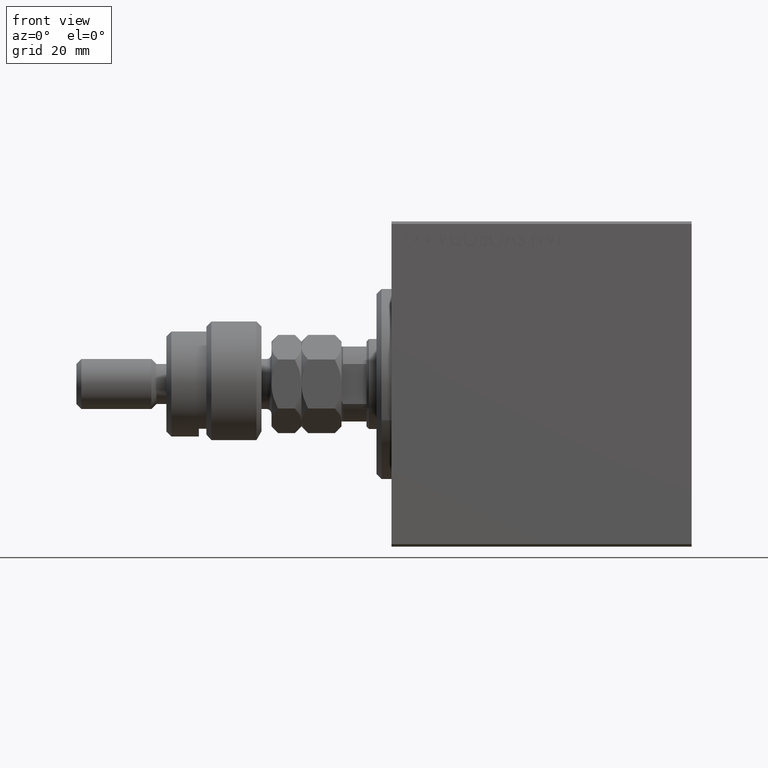
[diagram: clean part render]
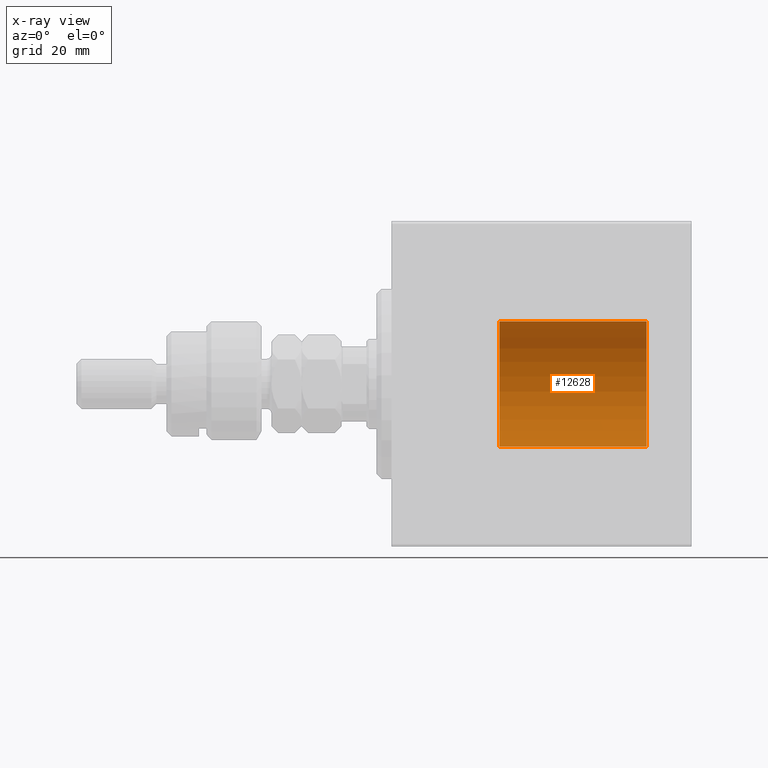
[diagram: x-ray — body ghosted, one internal face saturated and labeled with its STEP entity id]
A machine part, front view, then the same camera in x-ray: the body is ghosted and one INTERNAL B-rep face — a face not visible from any outside direction — is saturated and labeled: STEP entity #12628.
In plain terms, the highlighted cylindrical surface (partial cylindrical patch) has radius 12.5 mm, axis along (-1, -0, -0).
Its self-contained STEP definition (entity closure, byte-faithful):
#1125 = DIRECTION ( 'NONE',  ( 0.000000000000000000, 0.000000000000000000, 1.000000000000000000 ) ) ;
#2599 = VERTEX_POINT ( 'NONE', #20641 ) ;
#3062 = VERTEX_POINT ( 'NONE', #44123 ) ;
#4458 = ORIENTED_EDGE ( 'NONE', *, *, #25769, .T. ) ;
#5066 = ORIENTED_EDGE ( 'NONE', *, *, #29519, .F. ) ;
#5988 = AXIS2_PLACEMENT_3D ( 'NONE', #20672, #13148, #46133 ) ;
#7384 = EDGE_CURVE ( 'NONE', #2599, #24529, #45739, .T. ) ;
#11579 = EDGE_CURVE ( 'NONE', #17504, #3062, #36807, .T. ) ;
#12628 = ADVANCED_FACE ( 'NONE', ( #31500 ), #19980, .F. ) ;
#13148 = DIRECTION ( 'NONE',  ( -1.000000000000000000, -0.000000000000000000, -0.000000000000000000 ) ) ;
#14381 = LINE ( 'NONE', #17916, #14628 ) ;
#14628 = VECTOR ( 'NONE', #38895, 1000.000000000000000 ) ;
#14976 = VECTOR ( 'NONE', #39550, 1000.000000000000000 ) ;
#15745 = DIRECTION ( 'NONE',  ( -1.000000000000000000, 0.000000000000000000, 0.000000000000000000 ) ) ;
#17504 = VERTEX_POINT ( 'NONE', #39557 ) ;
#17916 = CARTESIAN_POINT ( 'NONE',  ( 51.00000000000000000, 0.000000000000000000, 12.50000000000000000 ) ) ;
#18449 = CARTESIAN_POINT ( 'NONE',  ( 51.00000000000000000, 0.000000000000000000, 0.000000000000000000 ) ) ;
#18685 = DIRECTION ( 'NONE',  ( -1.000000000000000000, 0.000000000000000000, 0.000000000000000000 ) ) ;
#18807 = CARTESIAN_POINT ( 'NONE',  ( 21.60000000000000142, 0.000000000000000000, 0.000000000000000000 ) ) ;
#19980 = CYLINDRICAL_SURFACE ( 'NONE', #5988, 12.50000000000000000 ) ;
#20641 = CARTESIAN_POINT ( 'NONE',  ( 51.00000000000000000, 0.000000000000000000, 12.50000000000000000 ) ) ;
#20672 = CARTESIAN_POINT ( 'NONE',  ( 51.00000000000000000, 0.000000000000000000, 0.000000000000000000 ) ) ;
#22247 = CARTESIAN_POINT ( 'NONE',  ( 51.00000000000000000, 1.530808498934191521E-15, -12.50000000000000000 ) ) ;
#22806 = ORIENTED_EDGE ( 'NONE', *, *, #7384, .F. ) ;
#23991 = AXIS2_PLACEMENT_3D ( 'NONE', #18807, #15745, #1125 ) ;
#24529 = VERTEX_POINT ( 'NONE', #22247 ) ;
#25173 = LINE ( 'NONE', #39783, #14976 ) ;
#25395 = AXIS2_PLACEMENT_3D ( 'NONE', #18449, #18685, #36114 ) ;
#25769 = EDGE_CURVE ( 'NONE', #2599, #17504, #14381, .T. ) ;
#29220 = ORIENTED_EDGE ( 'NONE', *, *, #11579, .T. ) ;
#29519 = EDGE_CURVE ( 'NONE', #24529, #3062, #25173, .T. ) ;
#31500 = FACE_OUTER_BOUND ( 'NONE', #41914, .T. ) ;
#36114 = DIRECTION ( 'NONE',  ( 0.000000000000000000, 0.000000000000000000, 1.000000000000000000 ) ) ;
#36807 = CIRCLE ( 'NONE', #23991, 12.50000000000000000 ) ;
#38895 = DIRECTION ( 'NONE',  ( -1.000000000000000000, -0.000000000000000000, -0.000000000000000000 ) ) ;
#39550 = DIRECTION ( 'NONE',  ( -1.000000000000000000, -0.000000000000000000, -0.000000000000000000 ) ) ;
#39557 = CARTESIAN_POINT ( 'NONE',  ( 21.60000000000000142, 0.000000000000000000, 12.50000000000000000 ) ) ;
#39783 = CARTESIAN_POINT ( 'NONE',  ( 51.00000000000000000, 1.530808498934191521E-15, -12.50000000000000000 ) ) ;
#41914 = EDGE_LOOP ( 'NONE', ( #5066, #22806, #4458, #29220 ) ) ;
#44123 = CARTESIAN_POINT ( 'NONE',  ( 21.60000000000000142, 1.530808498934191521E-15, -12.50000000000000000 ) ) ;
#45739 = CIRCLE ( 'NONE', #25395, 12.50000000000000000 ) ;
#46133 = DIRECTION ( 'NONE',  ( 0.000000000000000000, 0.000000000000000000, 1.000000000000000000 ) ) ;